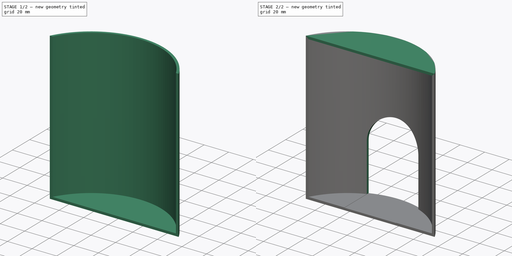
[diagram: build sequence overview — one tinted view per stage of 2, left to right]
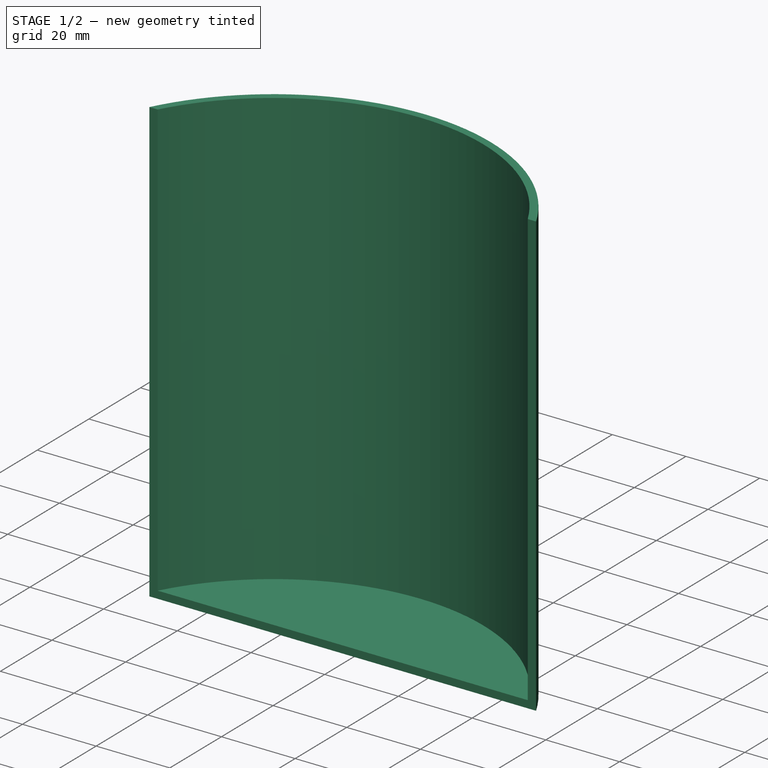
[diagram: stage 1 of 2 — iso view after this stage's code; geometry added in this stage tinted green]
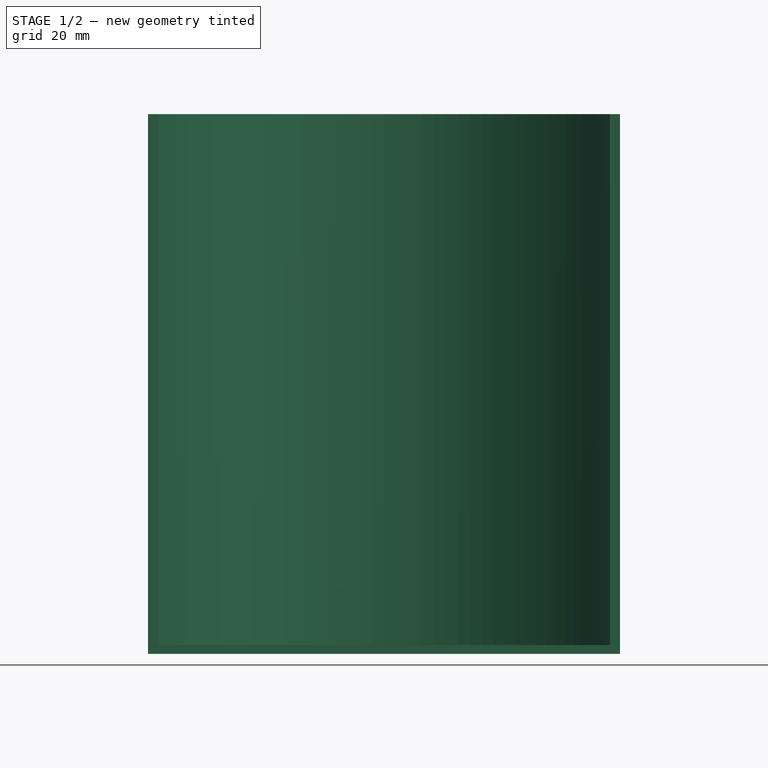
[diagram: stage 1 of 2 — front view after this stage's code; geometry added in this stage tinted green]
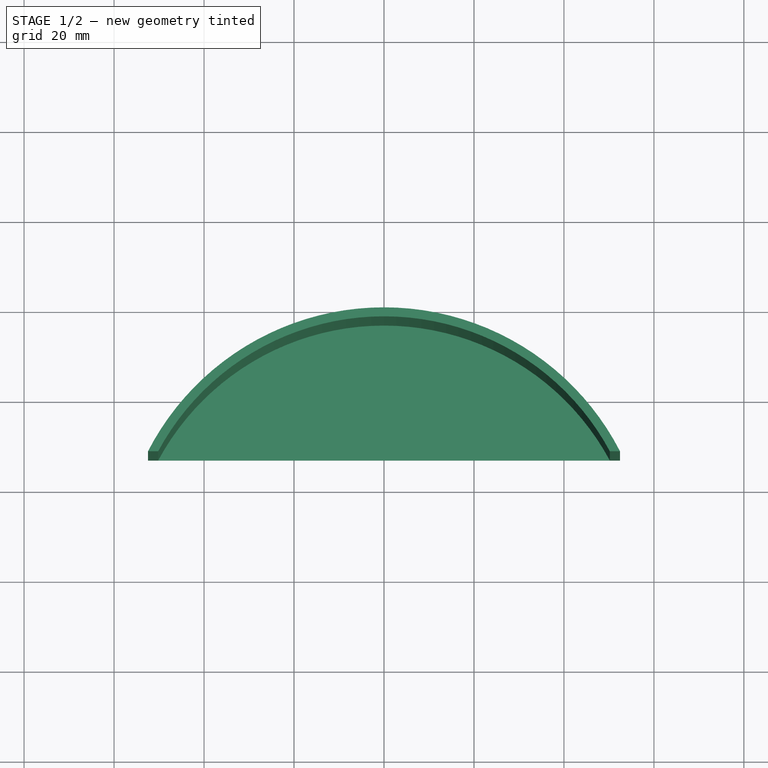
[diagram: stage 1 of 2 — top view after this stage's code; geometry added in this stage tinted green]
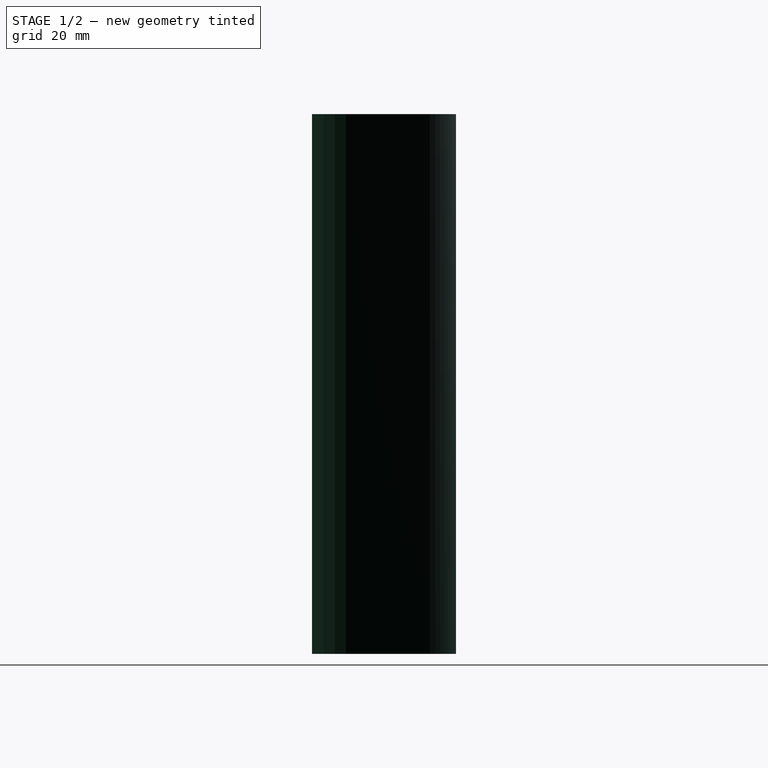
[diagram: stage 1 of 2 — right view after this stage's code; geometry added in this stage tinted green]
FCSTD DOCUMENT  (FreeCAD 1.0R39109 (Git))
Label: luoModemSupport
License: All rights reserved
LicenseURL: https://en.wikipedia.org/wiki/All_rights_reserved
objects: Sketcher::SketchObject×4, PartDesign::Pad×3, Spreadsheet::Sheet×1, PartDesign::Pocket×1, PartDesign::Body×1
note: 21 computed .brp shape members not serialized (recipe doc carries the construction recipe); baked Part::Feature solids carry a one-line shape summary decoded from their .brp

FEATURE [Sketcher::SketchObject] Sketch
  ArcFitTolerance = 1e-06
  AttachmentSupport = -> [XY_Plane]
  FullyConstrained = true
  MakeInternals = false
  MapMode = 5
  expr: Constraints[12] = Spreadsheet.calcToCoverEdge
  expr: Constraints[2] = Spreadsheet.modemSR * 2
  expr: Constraints[3] = Spreadsheet.modemSR + Spreadsheet.thickness
  sketch-geometry (4):
    g0: ArcOfCircle CenterX=0 CenterY=0 CenterZ=0 NormalX=0 NormalY=0 NormalZ=1 AngleXU=0 Radius=59 StartAngle=0.475325 EndAngle=2.66627
    g1: ArcOfCircle CenterX=0 CenterY=0 CenterZ=0 NormalX=0 NormalY=0 NormalZ=1 AngleXU=0 Radius=57 StartAngle=0.493469 EndAngle=2.64812
    g2: LineSegment StartX=-52.4595 StartY=27 StartZ=0 EndX=-50.1996 EndY=27 EndZ=0
    g3: LineSegment StartX=50.1996 StartY=27 StartZ=0 EndX=52.4595 EndY=27 EndZ=0
  constraints (13):
    c: Coincident(g0,g-1)
    c: Coincident(g1,g0)
    c: Diameter(g1) = 114
    c: Radius(g0) = 59
    c: Horizontal(g2)
    c: Coincident(g0,g2)
    c: Coincident(g0,g3)
    c: PointOnObject(g1,g3)
    c: Coincident(g2,g1)
    c: PointOnObject(g3,g1)
    c: Horizontal(g1,g0)
    c: Horizontal(g0,g1)
    c: DistanceY(g0,g1) = 27
FEATURE [PartDesign::Pad] Pad
  Direction = (0,0,1)
  Length = 120
  Length2 = 10
  Profile = -> Sketch
  ReferenceAxis = -> Sketch [N_Axis]
  Refine = true
  Suppressed = false
  Type = 0
  expr: Length = Spreadsheet.modemHeight + Spreadsheet.thickness * 2
FEATURE [Spreadsheet::Sheet] Spreadsheet
  cells = A1='modemHeight; B1(modemHeight)=116; A2='modemR; B2(modemR)==111 / 2; A3='modemSR; B3(modemSR)==114 / 2; A4='thickness; B4(thickness)=2; A5='clearing; B5(clearing)=30; A8='calcToCoverEdge; B8(calcToCoverEdge)==modemSR - clearing; A10='holeHeight; B10(holeHeight)=60; A11='holeR; B11(holeR)=21
FEATURE [Sketcher::SketchObject] Sketch001
  ArcFitTolerance = 1e-06
  AttachmentSupport = -> [XY_Plane]
  FullyConstrained = true
  MakeInternals = false
  MapMode = 5
  expr: Constraints[1] = Spreadsheet.modemSR
  expr: Constraints[5] = Spreadsheet.calcToCoverEdge
  sketch-geometry (2):
    g0: ArcOfCircle CenterX=0 CenterY=0 CenterZ=0 NormalX=0 NormalY=0 NormalZ=1 AngleXU=0 Radius=57 StartAngle=0.493469 EndAngle=2.64812
    g1: LineSegment StartX=-50.1996 StartY=27 StartZ=0 EndX=50.1996 EndY=27 EndZ=0
  constraints (7):
    c: PointOnObject(g0,g-2)
    c: Radius(g0) = 57
    c: Horizontal(g1)
    c: Coincident(g0,g1)
    c: Coincident(g0,g1)
    c: DistanceY(g0,g0) = 27
    c: DistanceY(g-1,g0) = 0
FEATURE [PartDesign::Pad] Pad001
  BaseFeature = -> Pad
  Direction = (0,0,1)
  Length = 2
  Length2 = 10
  Profile = -> Sketch001
  ReferenceAxis = -> Sketch001 [N_Axis]
  Refine = true
  Suppressed = false
  Type = 0
  expr: Length = Spreadsheet.thickness
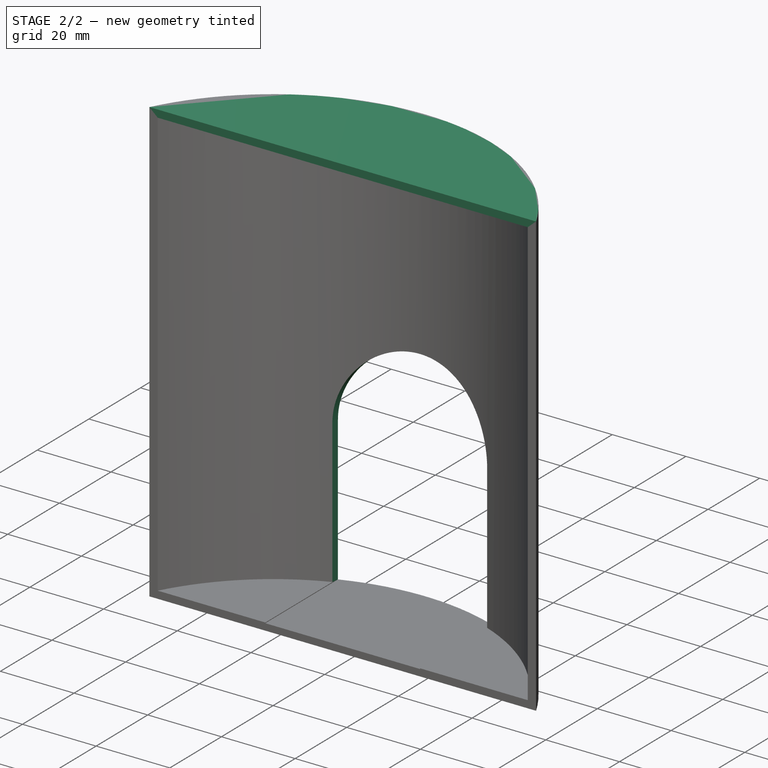
[diagram: stage 2 of 2 — iso view after this stage's code; geometry added in this stage tinted green]
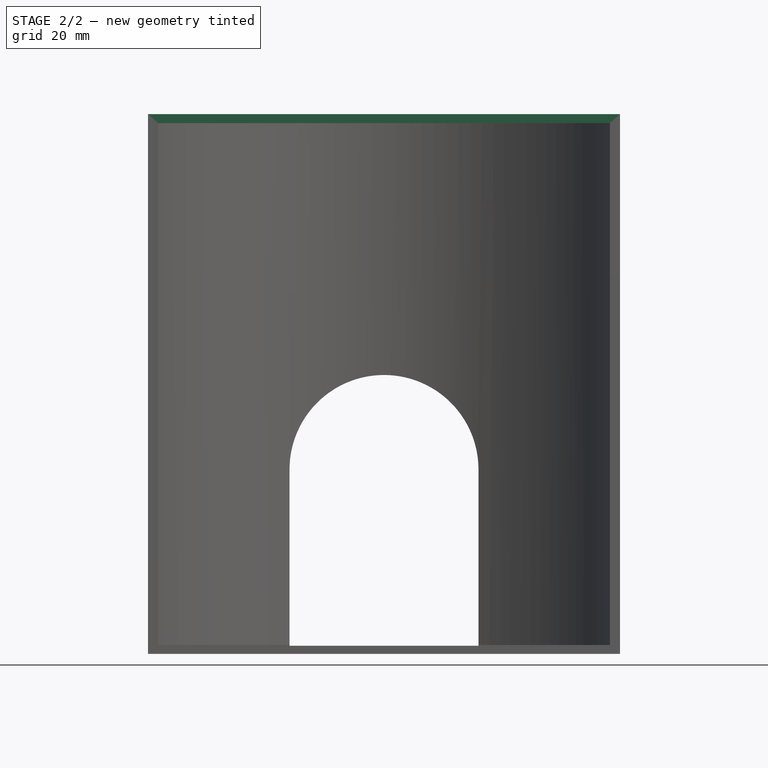
[diagram: stage 2 of 2 — front view after this stage's code; geometry added in this stage tinted green]
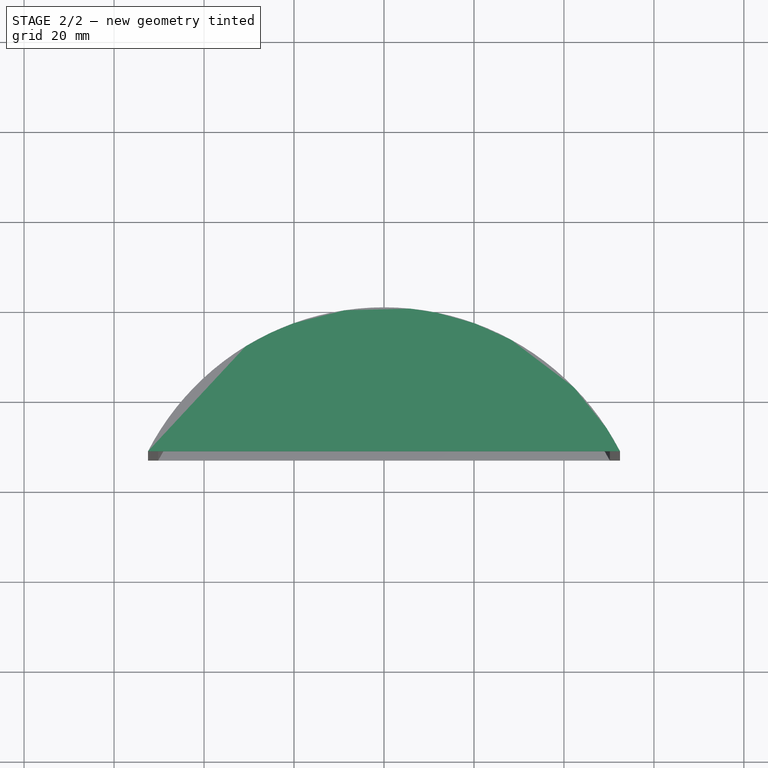
[diagram: stage 2 of 2 — top view after this stage's code; geometry added in this stage tinted green]
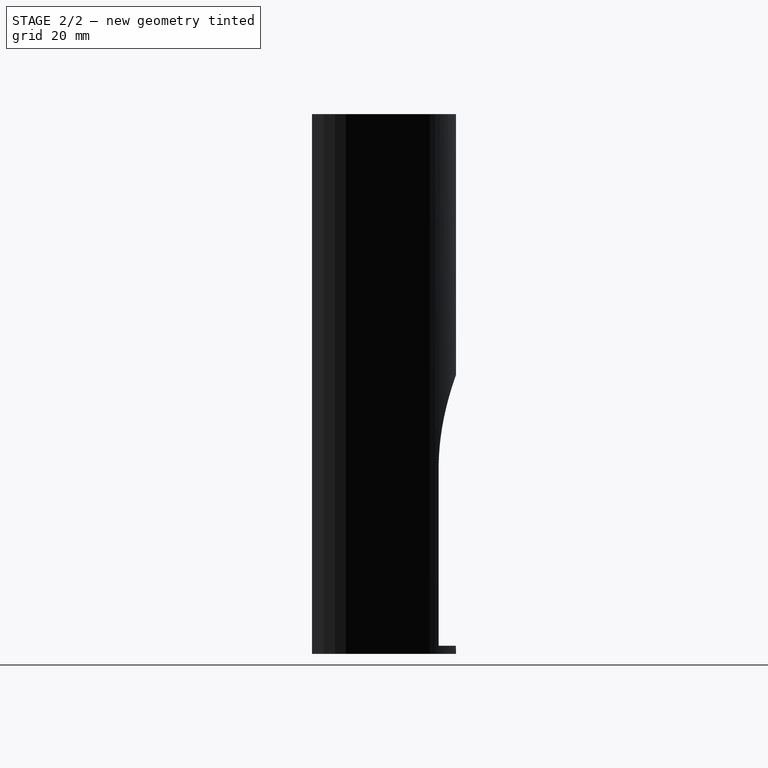
[diagram: stage 2 of 2 — right view after this stage's code; geometry added in this stage tinted green]
FEATURE [Sketcher::SketchObject] Sketch002
  ArcFitTolerance = 1e-06
  AttachmentOffset = pos=(0,0,118) rot=(0,0,1;0rad)
  AttachmentSupport = -> [XY_Plane]
  FullyConstrained = true
  MakeInternals = false
  MapMode = 5
  Placement = pos=(0,0,118) rot=(0,0,1;0rad)
  expr: .AttachmentOffset.Base.z = Spreadsheet.modemHeight + Spreadsheet.thickness
  expr: Constraints[4] = Spreadsheet.modemSR
  expr: Constraints[5] = Spreadsheet.calcToCoverEdge
  sketch-geometry (2):
    g0: ArcOfCircle CenterX=0 CenterY=0 CenterZ=0 NormalX=0 NormalY=0 NormalZ=1 AngleXU=0 Radius=57 StartAngle=0.493469 EndAngle=2.64812
    g1: LineSegment StartX=-50.1996 StartY=27 StartZ=0 EndX=50.1996 EndY=27 EndZ=0
  constraints (6):
    c: Coincident(g0,g-1)
    c: Horizontal(g1)
    c: Coincident(g0,g1)
    c: Coincident(g0,g1)
    c: Radius(g0) = 57
    c: DistanceY(g0,g0) = 27
FEATURE [PartDesign::Pad] Pad002
  BaseFeature = -> Pad001
  Direction = (0,0,1)
  Length = 2
  Length2 = 10
  Profile = -> Sketch002
  ReferenceAxis = -> Sketch002 [N_Axis]
  Refine = true
  Suppressed = false
  Type = 0
  expr: Length = Spreadsheet.thickness
FEATURE [Sketcher::SketchObject] Sketch003
  ArcFitTolerance = 1e-06
  AttachmentSupport = -> [XZ_Plane]
  FullyConstrained = false
  MakeInternals = false
  MapMode = 5
  Placement = pos=(0,0,0) rot=(1,0,0;1.5708rad)
  expr: Constraints[4] = Spreadsheet.holeR
  expr: Constraints[5] = Spreadsheet.holeHeight - Spreadsheet.holeR + Spreadsheet.thickness
  expr: Constraints[6] = Spreadsheet.holeHeight - Spreadsheet.holeR
  sketch-geometry (4):
    g0: LineSegment StartX=-20.9992 StartY=1.82086 StartZ=0 EndX=20.9992 EndY=1.82086 EndZ=0
    g1: LineSegment StartX=20.9992 StartY=1.82086 StartZ=0 EndX=20.9992 EndY=40.8209 EndZ=0
    g2: ArcOfCircle CenterX=0 CenterY=41 CenterZ=0 NormalX=0 NormalY=0 NormalZ=1 AngleXU=0 Radius=21 StartAngle=6.27465 EndAngle=9.4337
    g3: LineSegment StartX=-20.9992 StartY=1.82086 StartZ=0 EndX=-20.9992 EndY=40.8127 EndZ=0
  constraints (11):
    c: Coincident(g0,g1)
    c: Horizontal(g0)
    c: Vertical(g1)
    c: Coincident(g2,g1)
    c: Radius(g2) = 21
    c: DistanceY(g-1,g2) = 41
    c: DistanceY(g1,g1) = 39
    c: Coincident(g3,g0)
    c: Coincident(g3,g2)
    c: Vertical(g3)
    c: DistanceX(g2,g-1) = 0
FEATURE [PartDesign::Pocket] Pocket
  BaseFeature = -> Pad002
  Direction = (0,1,-2e-16)
  Length = 5
  Length2 = 5
  Profile = -> Sketch003
  ReferenceAxis = -> Sketch003 [N_Axis]
  Refine = true
  Suppressed = false
  Type = 1
FEATURE [PartDesign::Body] Body
  AllowCompound = false
  Group = -> [Sketch,Pad,Sketch001,Pad001,Sketch002,Pad002,Sketch003,Pocket]
  Origin = -> Origin
  Tip = -> Pocket
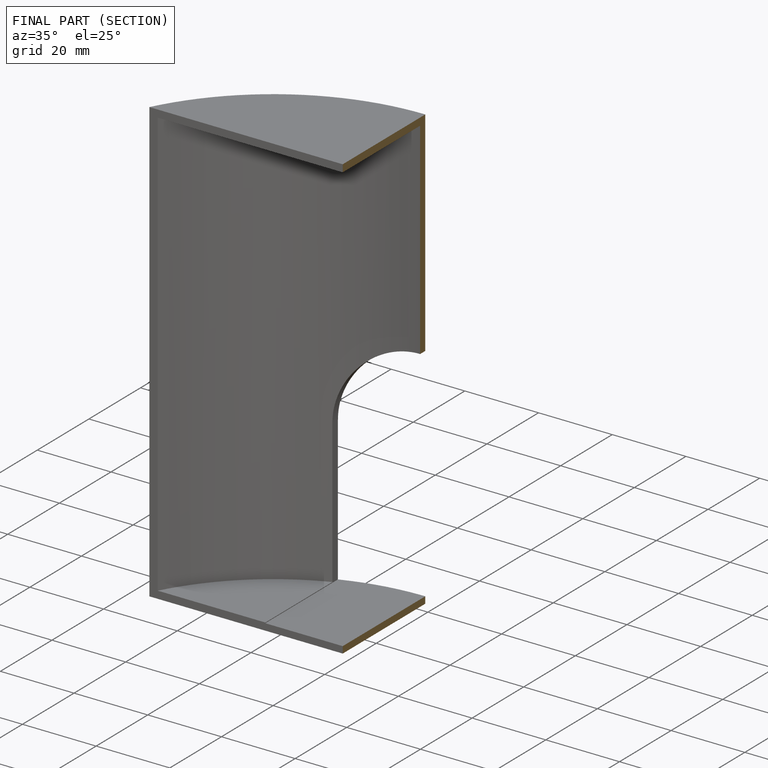
[diagram: finished part — half-section view (interior)]
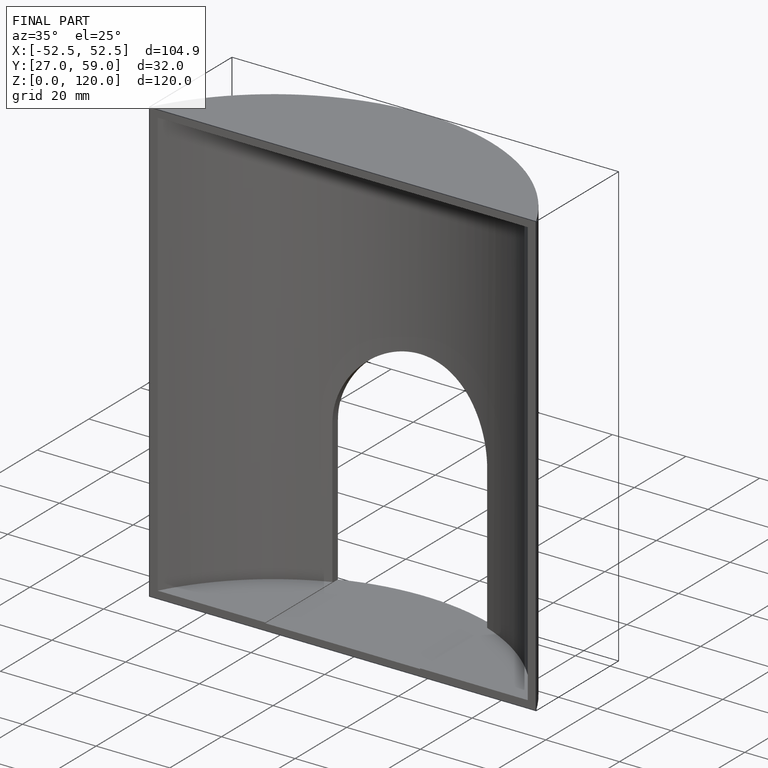
[diagram: finished part — iso view with bounding-box wireframe]
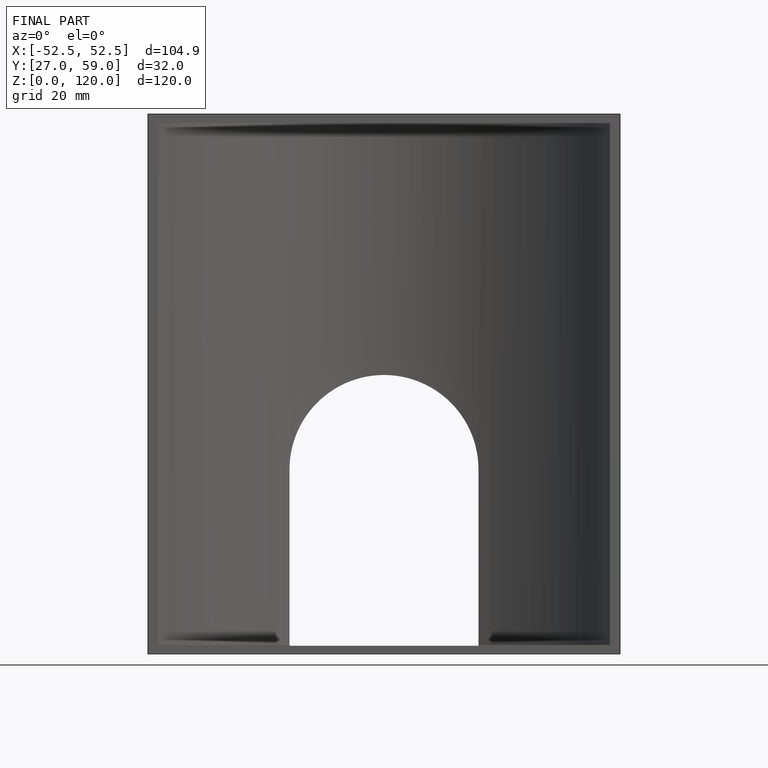
[diagram: finished part — front view with bounding-box wireframe]
